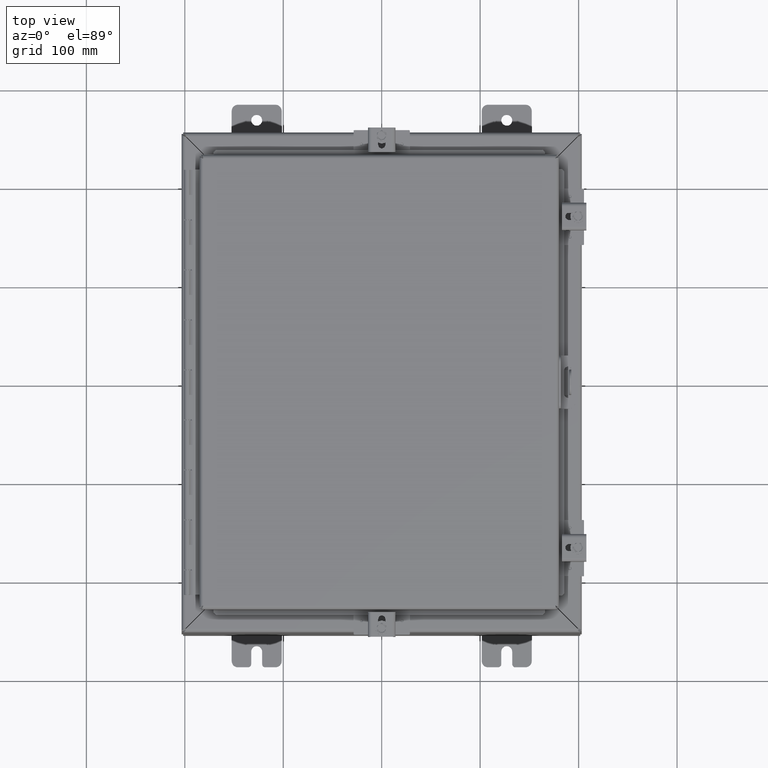
[diagram: clean part render]
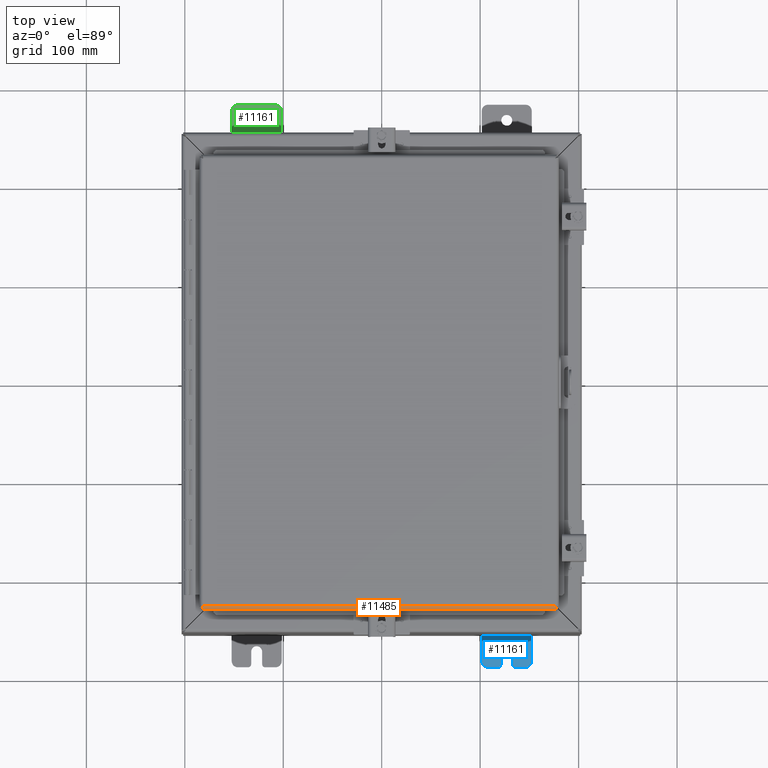
[diagram: same view with three faces highlighted in distinct colors, each labeled with its STEP entity id]
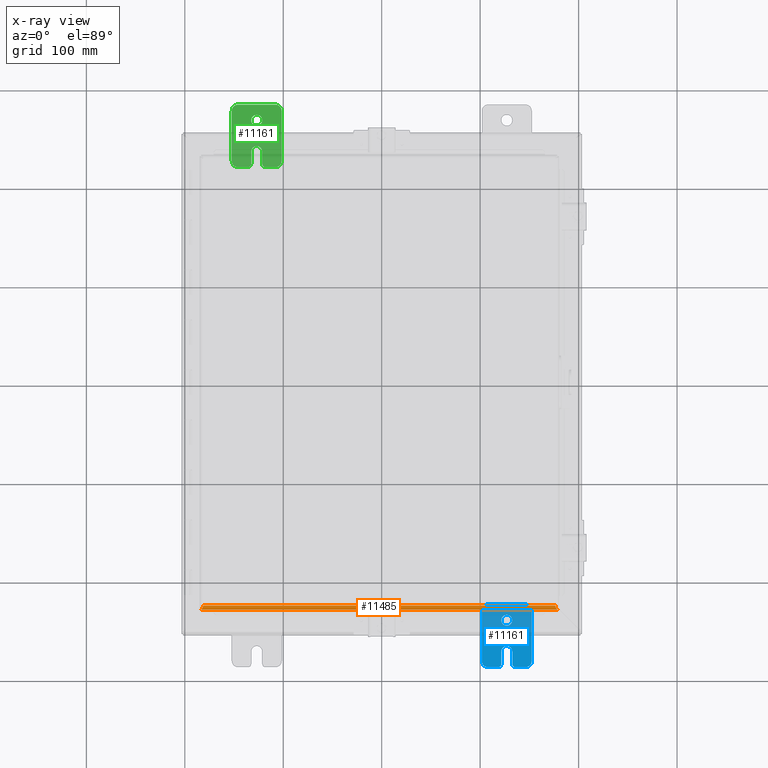
[diagram: x-ray of the same camera — body ghosted, the three highlighted faces saturated]
A machine part, top view with three faces highlighted in distinct colors.
The next image is the same camera in x-ray (body ghosted, the three faces saturated) — at least one of them is partly hidden behind the body in this view.
Their STEP definitions:

[orange] entity #11485 — the highlighted cylindrical surface (edge-blend (fillet) strip) has radius 3.8798 mm, axis along (1, 0, -0).
#489=B_SPLINE_CURVE_WITH_KNOTS('',3,(#19450,#19451,#19452,#19453,#19454,
#19455,#19456),.UNSPECIFIED.,.F.,.F.,(4,3,4),(-0.715532508257265,-0.30665678926351,
0.),.UNSPECIFIED.);
#491=B_SPLINE_CURVE_WITH_KNOTS('',3,(#19489,#19490,#19491,#19492),
 .UNSPECIFIED.,.F.,.F.,(4,4),(-1.,-0.715532508257265),.UNSPECIFIED.);
#492=B_SPLINE_CURVE_WITH_KNOTS('',3,(#19494,#19495,#19496,#19497,#19498,
#19499,#19500),.UNSPECIFIED.,.F.,.F.,(4,3,4),(0.,0.67319842576925,1.57079632679491),
 .UNSPECIFIED.);
#1781=FACE_OUTER_BOUND('',#2455,.T.);
#2455=EDGE_LOOP('',(#9309,#9310,#9311,#9312,#9313));
#3294=LINE('',#19253,#4299);
#3311=LINE('',#19501,#4316);
#4299=VECTOR('',#14040,14.2555857864376);
#4316=VECTOR('',#14079,14.0695);
#5634=VERTEX_POINT('',#19250);
#5635=VERTEX_POINT('',#19252);
#5645=VERTEX_POINT('',#19438);
#5646=VERTEX_POINT('',#19449);
#5647=VERTEX_POINT('',#19493);
#6956=EDGE_CURVE('',#5634,#5635,#3294,.T.);
#6983=EDGE_CURVE('',#5645,#5646,#489,.T.);
#6987=EDGE_CURVE('',#5635,#5645,#491,.T.);
#6988=EDGE_CURVE('',#5647,#5634,#492,.T.);
#6989=EDGE_CURVE('',#5646,#5647,#3311,.T.);
#9309=ORIENTED_EDGE('',*,*,#6987,.F.);
#9310=ORIENTED_EDGE('',*,*,#6956,.F.);
#9311=ORIENTED_EDGE('',*,*,#6988,.F.);
#9312=ORIENTED_EDGE('',*,*,#6989,.F.);
#9313=ORIENTED_EDGE('',*,*,#6983,.F.);
#11060=CYLINDRICAL_SURFACE('',#12214,0.15275);
#11485=ADVANCED_FACE('',(#1781),#11060,.T.);
#12214=AXIS2_PLACEMENT_3D('',#19488,#14077,#14078);
#14040=DIRECTION('',(-1.,2.70303420942883E-19,-1.45701730247834E-33));
#14077=DIRECTION('center_axis',(1.,0.,0.));
#14078=DIRECTION('ref_axis',(0.,0.,-1.));
#14079=DIRECTION('',(1.,0.,0.));
#19250=CARTESIAN_POINT('',(7.12779289321881,9.09375,0.15275));
#19252=CARTESIAN_POINT('',(-7.12779289321881,9.09375,0.152749999999998));
#19253=CARTESIAN_POINT('',(-0.0614433526183715,9.09375,0.152749999999999));
#19438=CARTESIAN_POINT('',(-7.10132521475945,9.07875252890584,0.086743914826424));
#19449=CARTESIAN_POINT('',(-7.03475,8.941,-1.09273919746571E-17));
#19450=CARTESIAN_POINT('Ctrl Pts',(-7.10132521476037,9.07875252890599,0.0867439148259556));
#19451=CARTESIAN_POINT('Ctrl Pts',(-7.08864422147303,9.06462149564512,0.0572529131614821));
#19452=CARTESIAN_POINT('Ctrl Pts',(-7.07596322818564,9.04071348159238,0.0325535765523282));
#19453=CARTESIAN_POINT('Ctrl Pts',(-7.06328223489824,9.01177130444698,0.017387224423589));
#19454=CARTESIAN_POINT('Ctrl Pts',(-7.05377148993213,8.99006467158665,0.00601246032635978));
#19455=CARTESIAN_POINT('Ctrl Pts',(-7.04426074496601,8.96552632198637,6.33340540718648E-17));
#19456=CARTESIAN_POINT('Ctrl Pts',(-7.03475,8.941,5.46369598732853E-17));
#19488=CARTESIAN_POINT('Origin',(3.517375,8.941,0.15275));
#19489=CARTESIAN_POINT('Ctrl Pts',(-7.12779289321881,9.09375,0.152749999999998));
#19490=CARTESIAN_POINT('Ctrl Pts',(-7.11897033373255,9.09375,0.12999837166036));
#19491=CARTESIAN_POINT('Ctrl Pts',(-7.11014777424633,9.08847563024511,0.107223518031332));
#19492=CARTESIAN_POINT('Ctrl Pts',(-7.10132521476015,9.07867879673499,0.0866824061310695));
#19493=CARTESIAN_POINT('',(7.03475,8.941,-1.09273919746571E-17));
#19494=CARTESIAN_POINT('Ctrl Pts',(7.03475,8.941,-4.37095678986282E-17));
#19495=CARTESIAN_POINT('Ctrl Pts',(7.0480418418884,8.97527701984542,-4.37095678986282E-17));
#19496=CARTESIAN_POINT('Ctrl Pts',(7.0613336837768,9.00959734422853,0.0119834551840861));
#19497=CARTESIAN_POINT('Ctrl Pts',(7.0746255256652,9.03626059100553,0.0333571275951804));
#19498=CARTESIAN_POINT('Ctrl Pts',(7.09234798151641,9.07181158670819,0.0618553574766393));
#19499=CARTESIAN_POINT('Ctrl Pts',(7.11007043736761,9.09375,0.107047306872779));
#19500=CARTESIAN_POINT('Ctrl Pts',(7.12779289321881,9.09375,0.152750000000002));
#19501=CARTESIAN_POINT('',(-3.59375,8.941,0.));

[blue] entity #11161 — the highlighted planar face has unit normal (-0, 0, 1).
#1053=FACE_BOUND('',#2113,.T.);
#1109=PLANE('',#11834);
#1457=FACE_OUTER_BOUND('',#2112,.T.);
#2112=EDGE_LOOP('',(#7841,#7842,#7843,#7844,#7845,#7846,#7847,#7848,#7849,
#7850,#7851,#7852,#7853,#7854));
#2113=EDGE_LOOP('',(#7855));
#2822=LINE('',#15807,#3827);
#2825=LINE('',#15813,#3830);
#2826=LINE('',#15817,#3831);
#2827=LINE('',#15821,#3832);
#2828=LINE('',#15825,#3833);
#2829=LINE('',#15829,#3834);
#2830=LINE('',#15833,#3835);
#3827=VECTOR('',#12828,0.5);
#3830=VECTOR('',#12833,0.406);
#3831=VECTOR('',#12836,2.);
#3832=VECTOR('',#12839,1.5);
#3833=VECTOR('',#12842,2.);
#3834=VECTOR('',#12845,0.406);
#3835=VECTOR('',#12848,0.5);
#4831=CIRCLE('',#11832,0.125);
#4832=CIRCLE('',#11835,0.25);
#4833=CIRCLE('',#11836,0.25);
#4834=CIRCLE('',#11837,0.25);
#4835=CIRCLE('',#11838,0.25);
#4836=CIRCLE('',#11839,0.125);
#4837=CIRCLE('',#11840,0.219);
#4838=CIRCLE('',#11841,0.219);
#5193=VERTEX_POINT('',#15800);
#5194=VERTEX_POINT('',#15802);
#5195=VERTEX_POINT('',#15806);
#5197=VERTEX_POINT('',#15812);
#5198=VERTEX_POINT('',#15814);
#5199=VERTEX_POINT('',#15816);
#5200=VERTEX_POINT('',#15818);
#5201=VERTEX_POINT('',#15820);
#5202=VERTEX_POINT('',#15822);
#5203=VERTEX_POINT('',#15824);
#5204=VERTEX_POINT('',#15826);
#5205=VERTEX_POINT('',#15828);
#5206=VERTEX_POINT('',#15830);
#5207=VERTEX_POINT('',#15832);
#5208=VERTEX_POINT('',#15835);
#6229=EDGE_CURVE('',#5193,#5194,#4831,.T.);
#6231=EDGE_CURVE('',#5195,#5194,#2822,.T.);
#6234=EDGE_CURVE('',#5197,#5193,#2825,.T.);
#6235=EDGE_CURVE('',#5198,#5197,#4832,.T.);
#6236=EDGE_CURVE('',#5199,#5198,#2826,.T.);
#6237=EDGE_CURVE('',#5200,#5199,#4833,.T.);
#6238=EDGE_CURVE('',#5201,#5200,#2827,.T.);
#6239=EDGE_CURVE('',#5202,#5201,#4834,.T.);
#6240=EDGE_CURVE('',#5203,#5202,#2828,.T.);
#6241=EDGE_CURVE('',#5204,#5203,#4835,.T.);
#6242=EDGE_CURVE('',#5205,#5204,#2829,.T.);
#6243=EDGE_CURVE('',#5206,#5205,#4836,.T.);
#6244=EDGE_CURVE('',#5206,#5207,#2830,.T.);
#6245=EDGE_CURVE('',#5207,#5195,#4837,.T.);
#6246=EDGE_CURVE('',#5208,#5208,#4838,.T.);
#7841=ORIENTED_EDGE('',*,*,#6229,.F.);
#7842=ORIENTED_EDGE('',*,*,#6234,.F.);
#7843=ORIENTED_EDGE('',*,*,#6235,.F.);
#7844=ORIENTED_EDGE('',*,*,#6236,.F.);
#7845=ORIENTED_EDGE('',*,*,#6237,.F.);
#7846=ORIENTED_EDGE('',*,*,#6238,.F.);
#7847=ORIENTED_EDGE('',*,*,#6239,.F.);
#7848=ORIENTED_EDGE('',*,*,#6240,.F.);
#7849=ORIENTED_EDGE('',*,*,#6241,.F.);
#7850=ORIENTED_EDGE('',*,*,#6242,.F.);
#7851=ORIENTED_EDGE('',*,*,#6243,.F.);
#7852=ORIENTED_EDGE('',*,*,#6244,.T.);
#7853=ORIENTED_EDGE('',*,*,#6245,.T.);
#7854=ORIENTED_EDGE('',*,*,#6231,.T.);
#7855=ORIENTED_EDGE('',*,*,#6246,.T.);
#11161=ADVANCED_FACE('',(#1457,#1053),#1109,.T.);
#11832=AXIS2_PLACEMENT_3D('',#15803,#12823,#12824);
#11834=AXIS2_PLACEMENT_3D('',#15811,#12831,#12832);
#11835=AXIS2_PLACEMENT_3D('',#15815,#12834,#12835);
#11836=AXIS2_PLACEMENT_3D('',#15819,#12837,#12838);
#11837=AXIS2_PLACEMENT_3D('',#15823,#12840,#12841);
#11838=AXIS2_PLACEMENT_3D('',#15827,#12843,#12844);
#11839=AXIS2_PLACEMENT_3D('',#15831,#12846,#12847);
#11840=AXIS2_PLACEMENT_3D('',#15834,#12849,#12850);
#11841=AXIS2_PLACEMENT_3D('',#15836,#12851,#12852);
#12823=DIRECTION('center_axis',(0.,0.,-1.));
#12824=DIRECTION('ref_axis',(-0.707106781186547,-0.707106781186548,0.));
#12828=DIRECTION('',(0.,-1.,0.));
#12831=DIRECTION('center_axis',(0.,0.,1.));
#12832=DIRECTION('ref_axis',(1.,0.,0.));
#12833=DIRECTION('',(-1.,0.,0.));
#12834=DIRECTION('center_axis',(0.,0.,-1.));
#12835=DIRECTION('ref_axis',(0.707106781186548,-0.707106781186548,0.));
#12836=DIRECTION('',(0.,-1.,0.));
#12837=DIRECTION('center_axis',(0.,0.,-1.));
#12838=DIRECTION('ref_axis',(0.707106781186548,0.707106781186548,0.));
#12839=DIRECTION('',(1.,0.,0.));
#12840=DIRECTION('center_axis',(0.,0.,-1.));
#12841=DIRECTION('ref_axis',(-0.707106781186548,0.707106781186547,0.));
#12842=DIRECTION('',(-3.06161699786838E-16,1.,0.));
#12843=DIRECTION('center_axis',(0.,0.,-1.));
#12844=DIRECTION('ref_axis',(-0.707106781186547,-0.707106781186548,0.));
#12845=DIRECTION('',(-1.,0.,0.));
#12846=DIRECTION('center_axis',(0.,0.,-1.));
#12847=DIRECTION('ref_axis',(0.707106781186548,-0.707106781186548,0.));
#12848=DIRECTION('',(0.,1.,0.));
#12849=DIRECTION('center_axis',(0.,0.,-1.));
#12850=DIRECTION('ref_axis',(1.,0.,0.));
#12851=DIRECTION('center_axis',(0.,0.,-1.));
#12852=DIRECTION('ref_axis',(-1.,0.,0.));
#15800=CARTESIAN_POINT('',(1.344,0.,0.125));
#15802=CARTESIAN_POINT('',(1.219,0.125,0.125));
#15803=CARTESIAN_POINT('Origin',(1.344,0.125,0.125));
#15806=CARTESIAN_POINT('',(1.219,0.625,0.125));
#15807=CARTESIAN_POINT('',(1.219,0.625,0.125));
#15811=CARTESIAN_POINT('Origin',(1.,1.25,0.125));
#15812=CARTESIAN_POINT('',(1.75,0.,0.125));
#15813=CARTESIAN_POINT('',(0.,0.,0.125));
#15814=CARTESIAN_POINT('',(2.,0.25,0.125));
#15815=CARTESIAN_POINT('Origin',(1.75,0.25,0.125));
#15816=CARTESIAN_POINT('',(2.,2.25,0.125));
#15817=CARTESIAN_POINT('',(2.,0.,0.125));
#15818=CARTESIAN_POINT('',(1.75,2.5,0.125));
#15819=CARTESIAN_POINT('Origin',(1.75,2.25,0.125));
#15820=CARTESIAN_POINT('',(0.249999999999999,2.5,0.125));
#15821=CARTESIAN_POINT('',(2.,2.5,0.125));
#15822=CARTESIAN_POINT('',(-6.88863824520386E-16,2.25,0.125));
#15823=CARTESIAN_POINT('Origin',(0.249999999999999,2.25,0.125));
#15824=CARTESIAN_POINT('',(-7.65404249467095E-17,0.25,0.125));
#15825=CARTESIAN_POINT('',(-7.65404249467096E-16,2.5,0.125));
#15826=CARTESIAN_POINT('',(0.25,0.,0.125));
#15827=CARTESIAN_POINT('Origin',(0.25,0.25,0.125));
#15828=CARTESIAN_POINT('',(0.656,0.,0.125));
#15829=CARTESIAN_POINT('',(0.,0.,0.125));
#15830=CARTESIAN_POINT('',(0.780999999999999,0.125,0.125));
#15831=CARTESIAN_POINT('Origin',(0.656,0.125,0.125));
#15832=CARTESIAN_POINT('',(0.781,0.625,0.125));
#15833=CARTESIAN_POINT('',(0.780999999999999,0.9375,0.125));
#15834=CARTESIAN_POINT('Origin',(1.,0.625,0.125));
#15835=CARTESIAN_POINT('',(1.219,1.875,0.125));
#15836=CARTESIAN_POINT('Origin',(1.,1.875,0.125));

[green] entity #11161 — the highlighted planar face has unit normal (0, 0, 1).
#1053=FACE_BOUND('',#2113,.T.);
#1109=PLANE('',#11834);
#1457=FACE_OUTER_BOUND('',#2112,.T.);
#2112=EDGE_LOOP('',(#7841,#7842,#7843,#7844,#7845,#7846,#7847,#7848,#7849,
#7850,#7851,#7852,#7853,#7854));
#2113=EDGE_LOOP('',(#7855));
#2822=LINE('',#15807,#3827);
#2825=LINE('',#15813,#3830);
#2826=LINE('',#15817,#3831);
#2827=LINE('',#15821,#3832);
#2828=LINE('',#15825,#3833);
#2829=LINE('',#15829,#3834);
#2830=LINE('',#15833,#3835);
#3827=VECTOR('',#12828,0.5);
#3830=VECTOR('',#12833,0.406);
#3831=VECTOR('',#12836,2.);
#3832=VECTOR('',#12839,1.5);
#3833=VECTOR('',#12842,2.);
#3834=VECTOR('',#12845,0.406);
#3835=VECTOR('',#12848,0.5);
#4831=CIRCLE('',#11832,0.125);
#4832=CIRCLE('',#11835,0.25);
#4833=CIRCLE('',#11836,0.25);
#4834=CIRCLE('',#11837,0.25);
#4835=CIRCLE('',#11838,0.25);
#4836=CIRCLE('',#11839,0.125);
#4837=CIRCLE('',#11840,0.219);
#4838=CIRCLE('',#11841,0.219);
#5193=VERTEX_POINT('',#15800);
#5194=VERTEX_POINT('',#15802);
#5195=VERTEX_POINT('',#15806);
#5197=VERTEX_POINT('',#15812);
#5198=VERTEX_POINT('',#15814);
#5199=VERTEX_POINT('',#15816);
#5200=VERTEX_POINT('',#15818);
#5201=VERTEX_POINT('',#15820);
#5202=VERTEX_POINT('',#15822);
#5203=VERTEX_POINT('',#15824);
#5204=VERTEX_POINT('',#15826);
#5205=VERTEX_POINT('',#15828);
#5206=VERTEX_POINT('',#15830);
#5207=VERTEX_POINT('',#15832);
#5208=VERTEX_POINT('',#15835);
#6229=EDGE_CURVE('',#5193,#5194,#4831,.T.);
#6231=EDGE_CURVE('',#5195,#5194,#2822,.T.);
#6234=EDGE_CURVE('',#5197,#5193,#2825,.T.);
#6235=EDGE_CURVE('',#5198,#5197,#4832,.T.);
#6236=EDGE_CURVE('',#5199,#5198,#2826,.T.);
#6237=EDGE_CURVE('',#5200,#5199,#4833,.T.);
#6238=EDGE_CURVE('',#5201,#5200,#2827,.T.);
#6239=EDGE_CURVE('',#5202,#5201,#4834,.T.);
#6240=EDGE_CURVE('',#5203,#5202,#2828,.T.);
#6241=EDGE_CURVE('',#5204,#5203,#4835,.T.);
#6242=EDGE_CURVE('',#5205,#5204,#2829,.T.);
#6243=EDGE_CURVE('',#5206,#5205,#4836,.T.);
#6244=EDGE_CURVE('',#5206,#5207,#2830,.T.);
#6245=EDGE_CURVE('',#5207,#5195,#4837,.T.);
#6246=EDGE_CURVE('',#5208,#5208,#4838,.T.);
#7841=ORIENTED_EDGE('',*,*,#6229,.F.);
#7842=ORIENTED_EDGE('',*,*,#6234,.F.);
#7843=ORIENTED_EDGE('',*,*,#6235,.F.);
#7844=ORIENTED_EDGE('',*,*,#6236,.F.);
#7845=ORIENTED_EDGE('',*,*,#6237,.F.);
#7846=ORIENTED_EDGE('',*,*,#6238,.F.);
#7847=ORIENTED_EDGE('',*,*,#6239,.F.);
#7848=ORIENTED_EDGE('',*,*,#6240,.F.);
#7849=ORIENTED_EDGE('',*,*,#6241,.F.);
#7850=ORIENTED_EDGE('',*,*,#6242,.F.);
#7851=ORIENTED_EDGE('',*,*,#6243,.F.);
#7852=ORIENTED_EDGE('',*,*,#6244,.T.);
#7853=ORIENTED_EDGE('',*,*,#6245,.T.);
#7854=ORIENTED_EDGE('',*,*,#6231,.T.);
#7855=ORIENTED_EDGE('',*,*,#6246,.T.);
#11161=ADVANCED_FACE('',(#1457,#1053),#1109,.T.);
#11832=AXIS2_PLACEMENT_3D('',#15803,#12823,#12824);
#11834=AXIS2_PLACEMENT_3D('',#15811,#12831,#12832);
#11835=AXIS2_PLACEMENT_3D('',#15815,#12834,#12835);
#11836=AXIS2_PLACEMENT_3D('',#15819,#12837,#12838);
#11837=AXIS2_PLACEMENT_3D('',#15823,#12840,#12841);
#11838=AXIS2_PLACEMENT_3D('',#15827,#12843,#12844);
#11839=AXIS2_PLACEMENT_3D('',#15831,#12846,#12847);
#11840=AXIS2_PLACEMENT_3D('',#15834,#12849,#12850);
#11841=AXIS2_PLACEMENT_3D('',#15836,#12851,#12852);
#12823=DIRECTION('center_axis',(0.,0.,-1.));
#12824=DIRECTION('ref_axis',(-0.707106781186547,-0.707106781186548,0.));
#12828=DIRECTION('',(0.,-1.,0.));
#12831=DIRECTION('center_axis',(0.,0.,1.));
#12832=DIRECTION('ref_axis',(1.,0.,0.));
#12833=DIRECTION('',(-1.,0.,0.));
#12834=DIRECTION('center_axis',(0.,0.,-1.));
#12835=DIRECTION('ref_axis',(0.707106781186548,-0.707106781186548,0.));
#12836=DIRECTION('',(0.,-1.,0.));
#12837=DIRECTION('center_axis',(0.,0.,-1.));
#12838=DIRECTION('ref_axis',(0.707106781186548,0.707106781186548,0.));
#12839=DIRECTION('',(1.,0.,0.));
#12840=DIRECTION('center_axis',(0.,0.,-1.));
#12841=DIRECTION('ref_axis',(-0.707106781186548,0.707106781186547,0.));
#12842=DIRECTION('',(-3.06161699786838E-16,1.,0.));
#12843=DIRECTION('center_axis',(0.,0.,-1.));
#12844=DIRECTION('ref_axis',(-0.707106781186547,-0.707106781186548,0.));
#12845=DIRECTION('',(-1.,0.,0.));
#12846=DIRECTION('center_axis',(0.,0.,-1.));
#12847=DIRECTION('ref_axis',(0.707106781186548,-0.707106781186548,0.));
#12848=DIRECTION('',(0.,1.,0.));
#12849=DIRECTION('center_axis',(0.,0.,-1.));
#12850=DIRECTION('ref_axis',(1.,0.,0.));
#12851=DIRECTION('center_axis',(0.,0.,-1.));
#12852=DIRECTION('ref_axis',(-1.,0.,0.));
#15800=CARTESIAN_POINT('',(1.344,0.,0.125));
#15802=CARTESIAN_POINT('',(1.219,0.125,0.125));
#15803=CARTESIAN_POINT('Origin',(1.344,0.125,0.125));
#15806=CARTESIAN_POINT('',(1.219,0.625,0.125));
#15807=CARTESIAN_POINT('',(1.219,0.625,0.125));
#15811=CARTESIAN_POINT('Origin',(1.,1.25,0.125));
#15812=CARTESIAN_POINT('',(1.75,0.,0.125));
#15813=CARTESIAN_POINT('',(0.,0.,0.125));
#15814=CARTESIAN_POINT('',(2.,0.25,0.125));
#15815=CARTESIAN_POINT('Origin',(1.75,0.25,0.125));
#15816=CARTESIAN_POINT('',(2.,2.25,0.125));
#15817=CARTESIAN_POINT('',(2.,0.,0.125));
#15818=CARTESIAN_POINT('',(1.75,2.5,0.125));
#15819=CARTESIAN_POINT('Origin',(1.75,2.25,0.125));
#15820=CARTESIAN_POINT('',(0.249999999999999,2.5,0.125));
#15821=CARTESIAN_POINT('',(2.,2.5,0.125));
#15822=CARTESIAN_POINT('',(-6.88863824520386E-16,2.25,0.125));
#15823=CARTESIAN_POINT('Origin',(0.249999999999999,2.25,0.125));
#15824=CARTESIAN_POINT('',(-7.65404249467095E-17,0.25,0.125));
#15825=CARTESIAN_POINT('',(-7.65404249467096E-16,2.5,0.125));
#15826=CARTESIAN_POINT('',(0.25,0.,0.125));
#15827=CARTESIAN_POINT('Origin',(0.25,0.25,0.125));
#15828=CARTESIAN_POINT('',(0.656,0.,0.125));
#15829=CARTESIAN_POINT('',(0.,0.,0.125));
#15830=CARTESIAN_POINT('',(0.780999999999999,0.125,0.125));
#15831=CARTESIAN_POINT('Origin',(0.656,0.125,0.125));
#15832=CARTESIAN_POINT('',(0.781,0.625,0.125));
#15833=CARTESIAN_POINT('',(0.780999999999999,0.9375,0.125));
#15834=CARTESIAN_POINT('Origin',(1.,0.625,0.125));
#15835=CARTESIAN_POINT('',(1.219,1.875,0.125));
#15836=CARTESIAN_POINT('Origin',(1.,1.875,0.125));